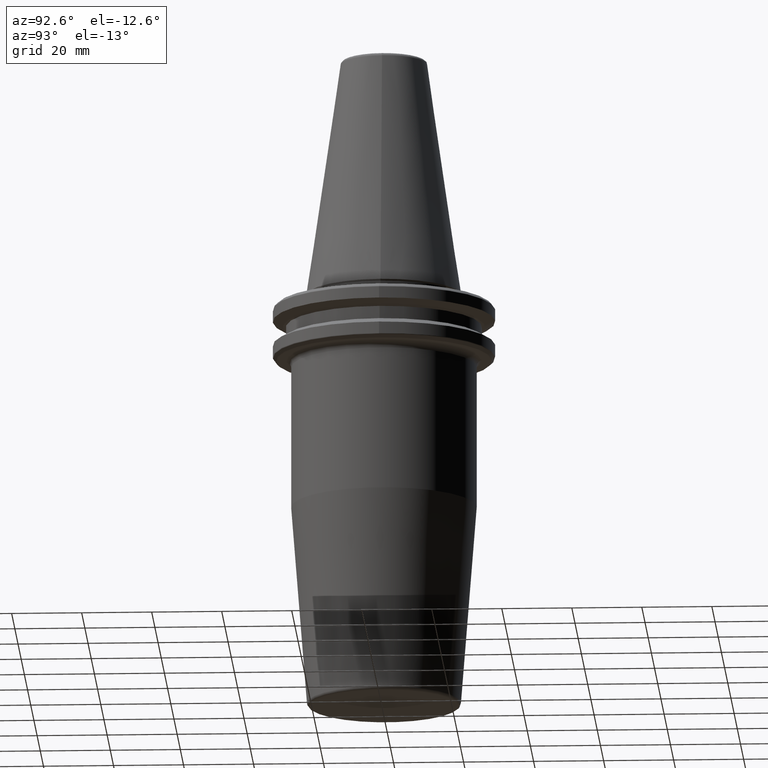
[diagram: clean part render]
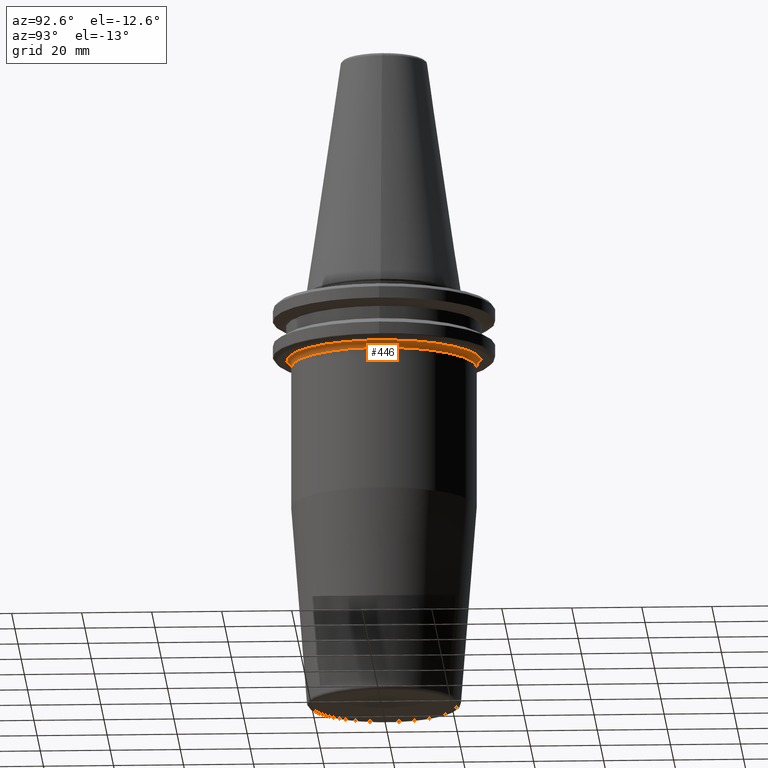
[diagram: same view with one face highlighted and labeled with its STEP entity id]
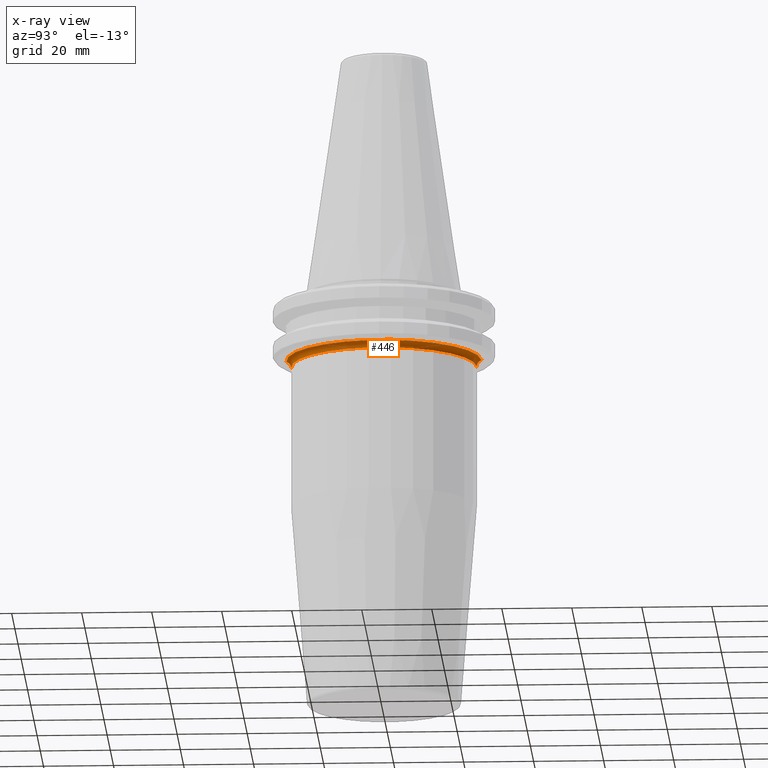
[diagram: x-ray of the same camera — body ghosted, the highlighted face saturated]
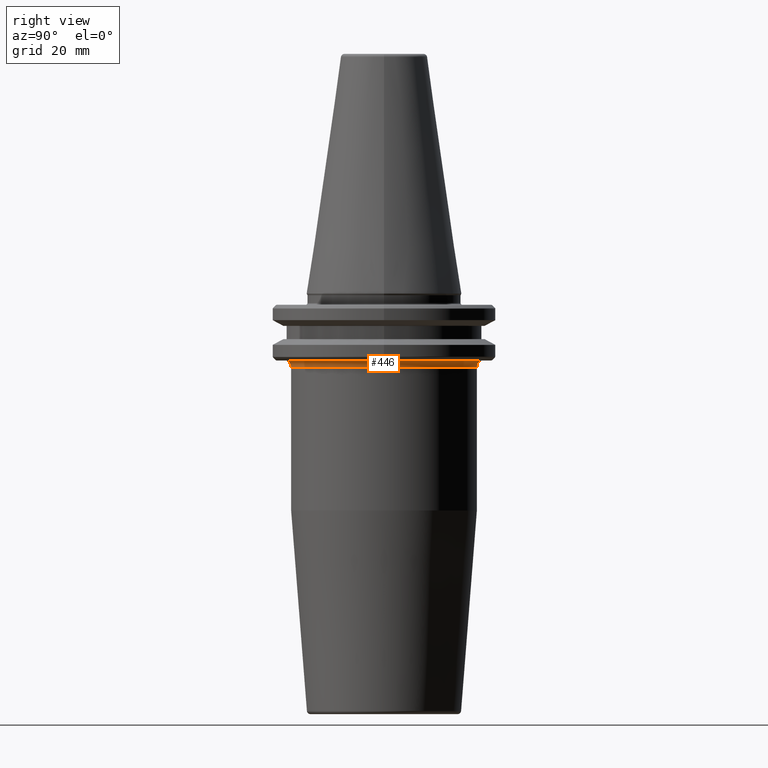
[diagram: same view with one face highlighted and labeled with its STEP entity id]
A machine part, auxiliary view. The second image highlights one B-rep face of the part: STEP entity #446.
The next image is the same camera in x-ray: the body ghosted, the highlighted face saturated — about 0% of this face is hidden behind the body in this view.
A second angle (right view) of the same face is appended — the face is thin or edge-on in the first view.
In plain terms, the highlighted toroidal blend (fillet) surface has major radius 28.5 mm and minor (blend) radius 2 mm.
Its self-contained STEP definition (entity closure, byte-faithful):
#14 = DIRECTION ( 'NONE',  ( 0.0000000000000000000, 0.0000000000000000000, 1.000000000000000000 ) ) ;
#26 = CARTESIAN_POINT ( 'NONE',  ( 0.0000000000000000000, 28.49999999999999600, -20.98284271247460000 ) ) ;
#39 = DIRECTION ( 'NONE',  ( 0.0000000000000000000, 0.0000000000000000000, -1.000000000000000000 ) ) ;
#95 = ORIENTED_EDGE ( 'NONE', *, *, #122, .T. ) ;
#122 = EDGE_CURVE ( 'NONE', #1245, #954, #272, .T. ) ;
#130 = DIRECTION ( 'NONE',  ( -1.000000000000000000, 0.0000000000000000000, 0.0000000000000000000 ) ) ;
#150 = AXIS2_PLACEMENT_3D ( 'NONE', #738, #1119, #990 ) ;
#217 = VERTEX_POINT ( 'NONE', #567 ) ;
#271 = EDGE_LOOP ( 'NONE', ( #609, #1159, #1182, #95 ) ) ;
#272 = CIRCLE ( 'NONE', #512, 27.82553478956935000 ) ;
#281 = CIRCLE ( 'NONE', #1092, 26.50000000000001400 ) ;
#288 = VERTEX_POINT ( 'NONE', #675 ) ;
#319 = DIRECTION ( 'NONE',  ( -0.0000000000000000000, 1.946757673717420000E-016, -1.000000000000000000 ) ) ;
#324 = DIRECTION ( 'NONE',  ( 0.0000000000000000000, 1.000000000000000000, 1.309225264888155600E-016 ) ) ;
#339 = CARTESIAN_POINT ( 'NONE',  ( 3.407645211460943300E-015, -27.82553478956937800, -19.10000000000000500 ) ) ;
#359 = DIRECTION ( 'NONE',  ( 1.000000000000000000, 1.224646799147353200E-016, 2.384090553833585800E-032 ) ) ;
#396 = AXIS2_PLACEMENT_3D ( 'NONE', #26, #130, #14 ) ;
#446 = ADVANCED_FACE ( 'NONE', ( #1202 ), #492, .F. ) ;
#492 = TOROIDAL_SURFACE ( 'NONE', #150, 28.50000000000001400, 2.000000000000000000 ) ;
#512 = AXIS2_PLACEMENT_3D ( 'NONE', #911, #39, #724 ) ;
#567 = CARTESIAN_POINT ( 'NONE',  ( 0.0000000000000000000, 26.49999999999999600, -20.98284271247460400 ) ) ;
#609 = ORIENTED_EDGE ( 'NONE', *, *, #1107, .F. ) ;
#675 = CARTESIAN_POINT ( 'NONE',  ( 3.245314017740488100E-015, -26.50000000000003200, -20.98284271247461100 ) ) ;
#724 = DIRECTION ( 'NONE',  ( 1.000000000000000000, 0.0000000000000000000, 0.0000000000000000000 ) ) ;
#731 = EDGE_CURVE ( 'NONE', #217, #1245, #914, .T. ) ;
#738 = CARTESIAN_POINT ( 'NONE',  ( 0.0000000000000000000, -1.734723475976807100E-014, -20.98284271247460700 ) ) ;
#871 = EDGE_CURVE ( 'NONE', #217, #288, #281, .T. ) ;
#890 = AXIS2_PLACEMENT_3D ( 'NONE', #940, #359, #1035 ) ;
#911 = CARTESIAN_POINT ( 'NONE',  ( 0.0000000000000000000, -1.734723475976807100E-014, -19.10000000000000500 ) ) ;
#914 = CIRCLE ( 'NONE', #396, 2.000000000000001800 ) ;
#940 = CARTESIAN_POINT ( 'NONE',  ( 3.490243377569958000E-015, -28.50000000000003200, -20.98284271247461400 ) ) ;
#942 = CARTESIAN_POINT ( 'NONE',  ( 0.0000000000000000000, -1.688026949495919900E-014, -20.98284271247460700 ) ) ;
#954 = VERTEX_POINT ( 'NONE', #339 ) ;
#990 = DIRECTION ( 'NONE',  ( 0.0000000000000000000, 1.000000000000000000, 1.946757673717420000E-016 ) ) ;
#1035 = DIRECTION ( 'NONE',  ( -1.224646799147351500E-016, 1.000000000000000000, 0.0000000000000000000 ) ) ;
#1058 = CARTESIAN_POINT ( 'NONE',  ( 0.0000000000000000000, 27.82553478956932500, -19.10000000000000500 ) ) ;
#1092 = AXIS2_PLACEMENT_3D ( 'NONE', #942, #319, #324 ) ;
#1107 = EDGE_CURVE ( 'NONE', #288, #954, #1155, .T. ) ;
#1119 = DIRECTION ( 'NONE',  ( -0.0000000000000000000, 1.946757673717420000E-016, -1.000000000000000000 ) ) ;
#1155 = CIRCLE ( 'NONE', #890, 2.000000000000001800 ) ;
#1159 = ORIENTED_EDGE ( 'NONE', *, *, #871, .F. ) ;
#1182 = ORIENTED_EDGE ( 'NONE', *, *, #731, .T. ) ;
#1202 = FACE_OUTER_BOUND ( 'NONE', #271, .T. ) ;
#1245 = VERTEX_POINT ( 'NONE', #1058 ) ;